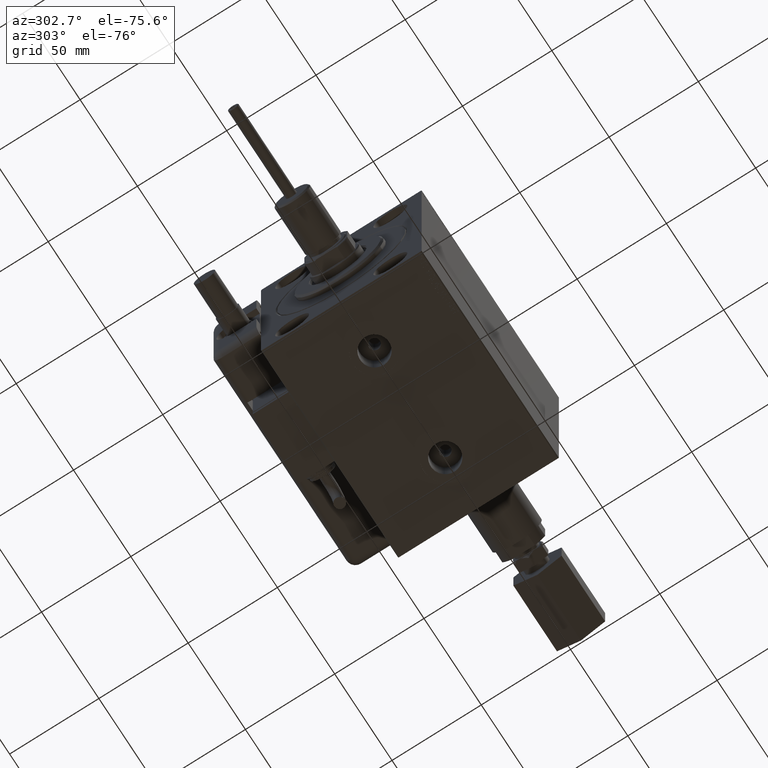
[diagram: clean part render]
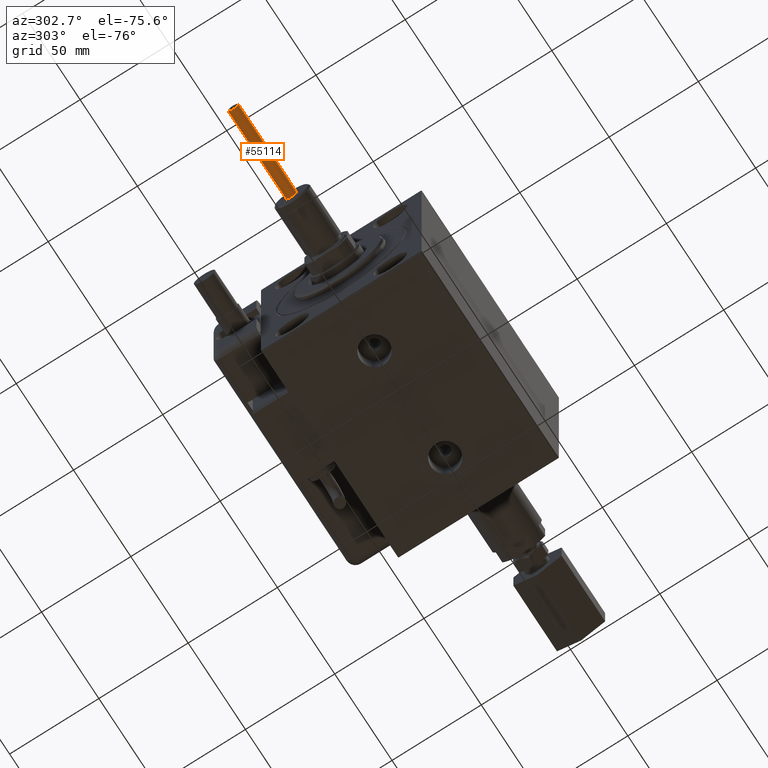
[diagram: same view with one face highlighted and labeled with its STEP entity id]
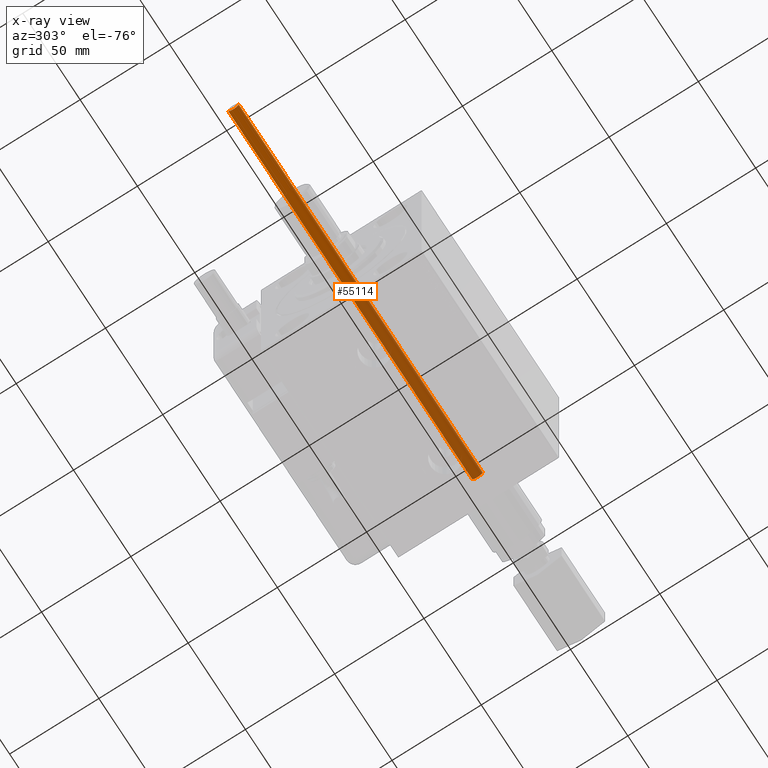
[diagram: x-ray of the same camera — body ghosted, the highlighted face saturated]
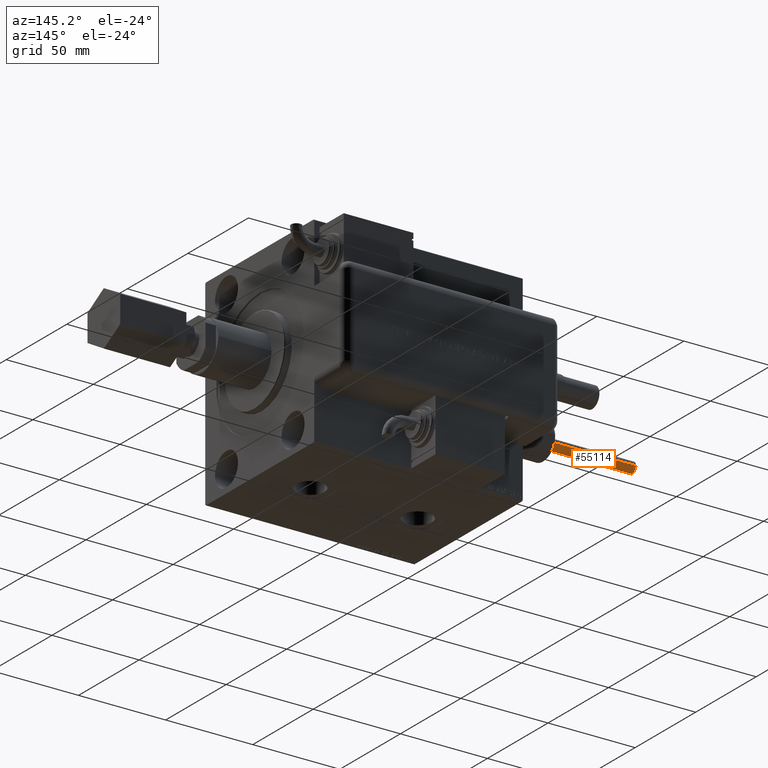
[diagram: same view with one face highlighted and labeled with its STEP entity id]
A machine part, auxiliary view. The second image highlights one B-rep face of the part: STEP entity #55114.
The next image is the same camera in x-ray: the body ghosted, the highlighted face saturated — about 52% of this face is hidden behind the body in this view.
A second angle (auxiliary view) of the same face is appended — the face is thin or edge-on in the first view.
In plain terms, the highlighted cylindrical surface (edge-blend (fillet) strip) has radius 3 mm, axis along (1, -0, -0).
Its self-contained STEP definition (entity closure, byte-faithful):
#1960 = EDGE_LOOP ( 'NONE', ( #17717, #4119, #28815, #34646 ) ) ;
#4119 = ORIENTED_EDGE ( 'NONE', *, *, #23456, .T. ) ;
#4735 = DIRECTION ( 'NONE',  ( 0.000000000000000000, 0.000000000000000000, -1.000000000000000000 ) ) ;
#8031 = DIRECTION ( 'NONE',  ( 1.000000000000000000, -0.000000000000000000, -0.000000000000000000 ) ) ;
#10115 = VECTOR ( 'NONE', #60373, 1000.000000000000000 ) ;
#10639 = CARTESIAN_POINT ( 'NONE',  ( 0.000000000000000000, 0.000000000000000000, -2.999999999999999556 ) ) ;
#14622 = CARTESIAN_POINT ( 'NONE',  ( -212.9000000000000341, 3.673940397442059375E-16, 2.999999999999999556 ) ) ;
#16064 = EDGE_CURVE ( 'NONE', #57284, #52840, #46477, .T. ) ;
#16162 = DIRECTION ( 'NONE',  ( 0.000000000000000000, 0.000000000000000000, 1.000000000000000000 ) ) ;
#16212 = CYLINDRICAL_SURFACE ( 'NONE', #42725, 2.999999999999999556 ) ;
#17717 = ORIENTED_EDGE ( 'NONE', *, *, #34884, .T. ) ;
#21523 = DIRECTION ( 'NONE',  ( 0.000000000000000000, 0.000000000000000000, 1.000000000000000000 ) ) ;
#21588 = VECTOR ( 'NONE', #8031, 1000.000000000000000 ) ;
#22264 = AXIS2_PLACEMENT_3D ( 'NONE', #48928, #29787, #16162 ) ;
#22432 = CARTESIAN_POINT ( 'NONE',  ( 0.000000000000000000, 0.000000000000000000, 0.000000000000000000 ) ) ;
#23456 = EDGE_CURVE ( 'NONE', #53975, #57284, #50393, .T. ) ;
#23895 = CARTESIAN_POINT ( 'NONE',  ( -213.1999999999999886, 0.000000000000000000, -2.999999999999999556 ) ) ;
#27714 = AXIS2_PLACEMENT_3D ( 'NONE', #22432, #45613, #21523 ) ;
#27889 = VERTEX_POINT ( 'NONE', #37982 ) ;
#28815 = ORIENTED_EDGE ( 'NONE', *, *, #16064, .T. ) ;
#29787 = DIRECTION ( 'NONE',  ( 1.000000000000000000, 0.000000000000000000, 0.000000000000000000 ) ) ;
#30453 = DIRECTION ( 'NONE',  ( 1.000000000000000000, -0.000000000000000000, -0.000000000000000000 ) ) ;
#34646 = ORIENTED_EDGE ( 'NONE', *, *, #53934, .F. ) ;
#34884 = EDGE_CURVE ( 'NONE', #27889, #53975, #38064, .T. ) ;
#35085 = CARTESIAN_POINT ( 'NONE',  ( -213.1999999999999886, 0.000000000000000000, 0.000000000000000000 ) ) ;
#36912 = LINE ( 'NONE', #23895, #10115 ) ;
#37982 = CARTESIAN_POINT ( 'NONE',  ( -212.9000000000000341, 0.000000000000000000, -2.999999999999999556 ) ) ;
#38064 = CIRCLE ( 'NONE', #22264, 2.999999999999999556 ) ;
#42725 = AXIS2_PLACEMENT_3D ( 'NONE', #35085, #30453, #4735 ) ;
#44345 = FACE_OUTER_BOUND ( 'NONE', #1960, .T. ) ;
#45613 = DIRECTION ( 'NONE',  ( -1.000000000000000000, 0.000000000000000000, 0.000000000000000000 ) ) ;
#46477 = CIRCLE ( 'NONE', #27714, 2.999999999999999556 ) ;
#48928 = CARTESIAN_POINT ( 'NONE',  ( -212.9000000000000341, 0.000000000000000000, 0.000000000000000000 ) ) ;
#50393 = LINE ( 'NONE', #54424, #21588 ) ;
#52840 = VERTEX_POINT ( 'NONE', #10639 ) ;
#53934 = EDGE_CURVE ( 'NONE', #27889, #52840, #36912, .T. ) ;
#53975 = VERTEX_POINT ( 'NONE', #14622 ) ;
#54424 = CARTESIAN_POINT ( 'NONE',  ( -213.1999999999999886, 3.673940397442059375E-16, 2.999999999999999556 ) ) ;
#55114 = ADVANCED_FACE ( 'NONE', ( #44345 ), #16212, .T. ) ;
#56155 = CARTESIAN_POINT ( 'NONE',  ( 0.000000000000000000, 3.673940397442059375E-16, 2.999999999999999556 ) ) ;
#57284 = VERTEX_POINT ( 'NONE', #56155 ) ;
#60373 = DIRECTION ( 'NONE',  ( 1.000000000000000000, -0.000000000000000000, -0.000000000000000000 ) ) ;